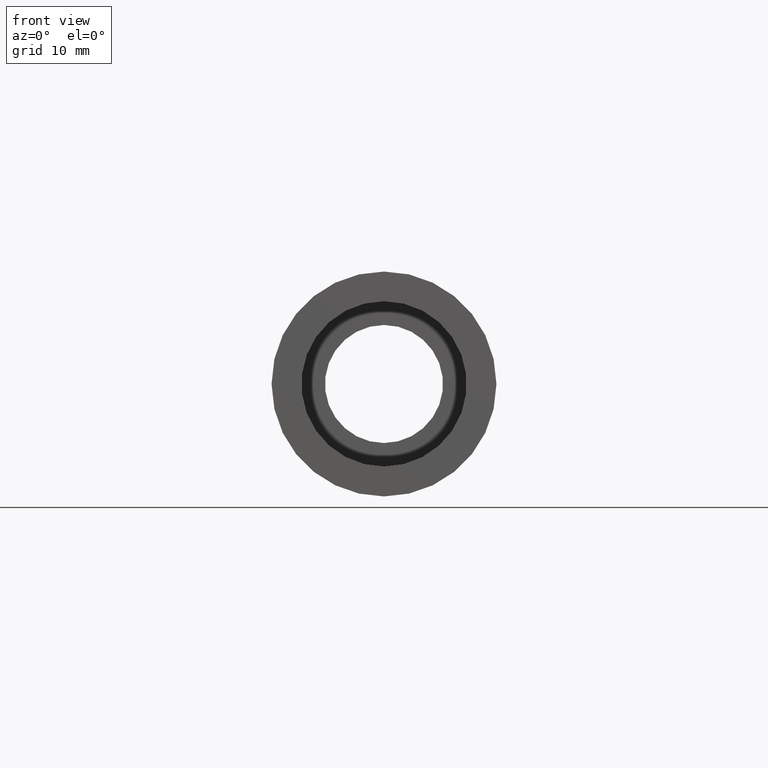
[diagram: clean part render]
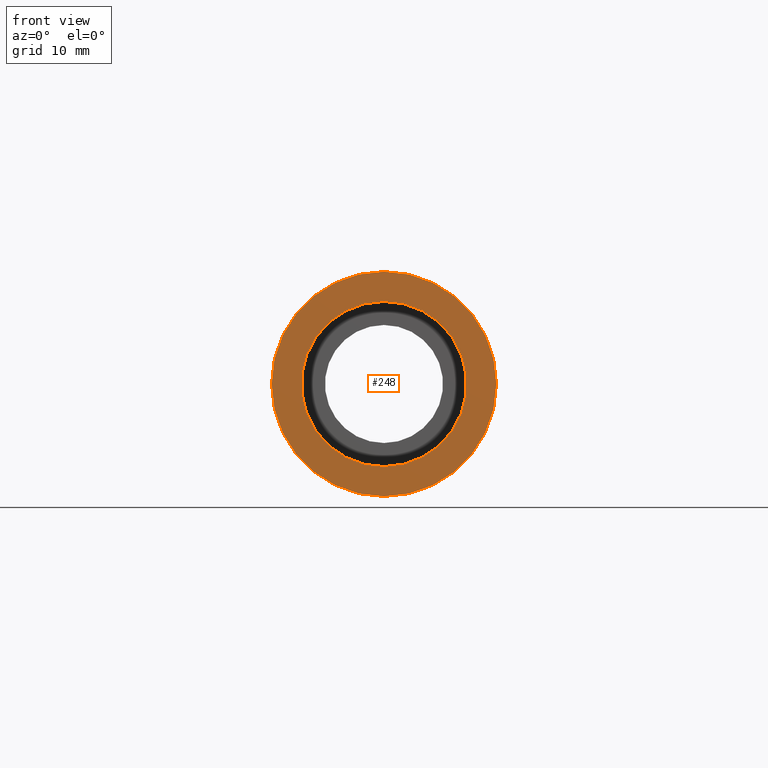
[diagram: same view with one face highlighted and labeled with its STEP entity id]
A machine part, front view. The second image highlights one B-rep face of the part: STEP entity #248.
In plain terms, the highlighted planar face has unit normal (-0, 1, 0).
Its self-contained STEP definition (entity closure, byte-faithful):
#7 = DIRECTION ( 'NONE',  ( 0.0000000000000000000, 0.0000000000000000000, 1.000000000000000000 ) ) ;
#13 = DIRECTION ( 'NONE',  ( 0.0000000000000000000, 0.0000000000000000000, 1.000000000000000000 ) ) ;
#24 = CARTESIAN_POINT ( 'NONE',  ( 8.572527594031495900E-016, -2.775557561562891400E-014, -7.000000000000019500 ) ) ;
#52 = CIRCLE ( 'NONE', #545, 7.000000000000019500 ) ;
#66 = DIRECTION ( 'NONE',  ( 0.0000000000000000000, 0.0000000000000000000, 1.000000000000000000 ) ) ;
#71 = VERTEX_POINT ( 'NONE', #353 ) ;
#80 = VERTEX_POINT ( 'NONE', #218 ) ;
#124 = AXIS2_PLACEMENT_3D ( 'NONE', #458, #411, #236 ) ;
#141 = AXIS2_PLACEMENT_3D ( 'NONE', #472, #385, #431 ) ;
#152 = CARTESIAN_POINT ( 'NONE',  ( 0.0000000000000000000, -2.775557561562891400E-014, 0.0000000000000000000 ) ) ;
#193 = CARTESIAN_POINT ( 'NONE',  ( 1.166476076187856400E-015, -2.775557561562891400E-014, -9.525000000000019900 ) ) ;
#218 = CARTESIAN_POINT ( 'NONE',  ( 0.0000000000000000000, -2.775557561562891400E-014, 9.525000000000019900 ) ) ;
#223 = ORIENTED_EDGE ( 'NONE', *, *, #582, .T. ) ;
#236 = DIRECTION ( 'NONE',  ( 0.0000000000000000000, 0.0000000000000000000, 1.000000000000000000 ) ) ;
#248 = ADVANCED_FACE ( 'NONE', ( #563, #618 ), #368, .F. ) ;
#289 = DIRECTION ( 'NONE',  ( -0.0000000000000000000, 1.000000000000000000, -0.0000000000000000000 ) ) ;
#291 = CIRCLE ( 'NONE', #554, 9.525000000000019900 ) ;
#322 = ORIENTED_EDGE ( 'NONE', *, *, #557, .F. ) ;
#339 = CARTESIAN_POINT ( 'NONE',  ( 0.0000000000000000000, -2.775557561562891400E-014, 0.0000000000000000000 ) ) ;
#353 = CARTESIAN_POINT ( 'NONE',  ( 0.0000000000000000000, -2.775557561562891400E-014, 7.000000000000019500 ) ) ;
#368 = PLANE ( 'NONE',  #124 ) ;
#377 = EDGE_LOOP ( 'NONE', ( #536, #223 ) ) ;
#385 = DIRECTION ( 'NONE',  ( -0.0000000000000000000, 1.000000000000000000, -0.0000000000000000000 ) ) ;
#411 = DIRECTION ( 'NONE',  ( -0.0000000000000000000, 1.000000000000000000, 0.0000000000000000000 ) ) ;
#431 = DIRECTION ( 'NONE',  ( 0.0000000000000000000, 0.0000000000000000000, 1.000000000000000000 ) ) ;
#432 = VERTEX_POINT ( 'NONE', #193 ) ;
#443 = AXIS2_PLACEMENT_3D ( 'NONE', #518, #289, #13 ) ;
#444 = EDGE_CURVE ( 'NONE', #71, #608, #52, .T. ) ;
#446 = CIRCLE ( 'NONE', #443, 7.000000000000019500 ) ;
#458 = CARTESIAN_POINT ( 'NONE',  ( 7.000000000000019500, -1.650046791174882700E-014, 0.0000000000000000000 ) ) ;
#472 = CARTESIAN_POINT ( 'NONE',  ( 0.0000000000000000000, -2.775557561562891400E-014, 0.0000000000000000000 ) ) ;
#501 = EDGE_LOOP ( 'NONE', ( #322, #549 ) ) ;
#518 = CARTESIAN_POINT ( 'NONE',  ( 0.0000000000000000000, -2.775557561562891400E-014, 0.0000000000000000000 ) ) ;
#536 = ORIENTED_EDGE ( 'NONE', *, *, #444, .T. ) ;
#538 = EDGE_CURVE ( 'NONE', #432, #80, #291, .T. ) ;
#545 = AXIS2_PLACEMENT_3D ( 'NONE', #152, #559, #7 ) ;
#549 = ORIENTED_EDGE ( 'NONE', *, *, #538, .F. ) ;
#554 = AXIS2_PLACEMENT_3D ( 'NONE', #339, #581, #66 ) ;
#557 = EDGE_CURVE ( 'NONE', #80, #432, #592, .T. ) ;
#559 = DIRECTION ( 'NONE',  ( -0.0000000000000000000, 1.000000000000000000, -0.0000000000000000000 ) ) ;
#563 = FACE_OUTER_BOUND ( 'NONE', #501, .T. ) ;
#581 = DIRECTION ( 'NONE',  ( -0.0000000000000000000, 1.000000000000000000, -0.0000000000000000000 ) ) ;
#582 = EDGE_CURVE ( 'NONE', #608, #71, #446, .T. ) ;
#592 = CIRCLE ( 'NONE', #141, 9.525000000000019900 ) ;
#608 = VERTEX_POINT ( 'NONE', #24 ) ;
#618 = FACE_BOUND ( 'NONE', #377, .T. ) ;